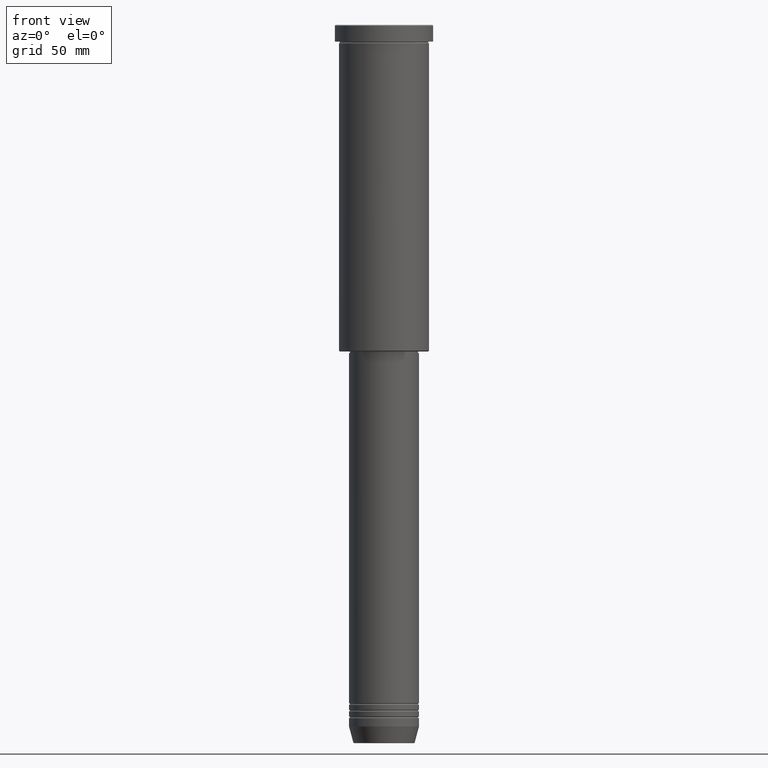
[diagram: clean part render]
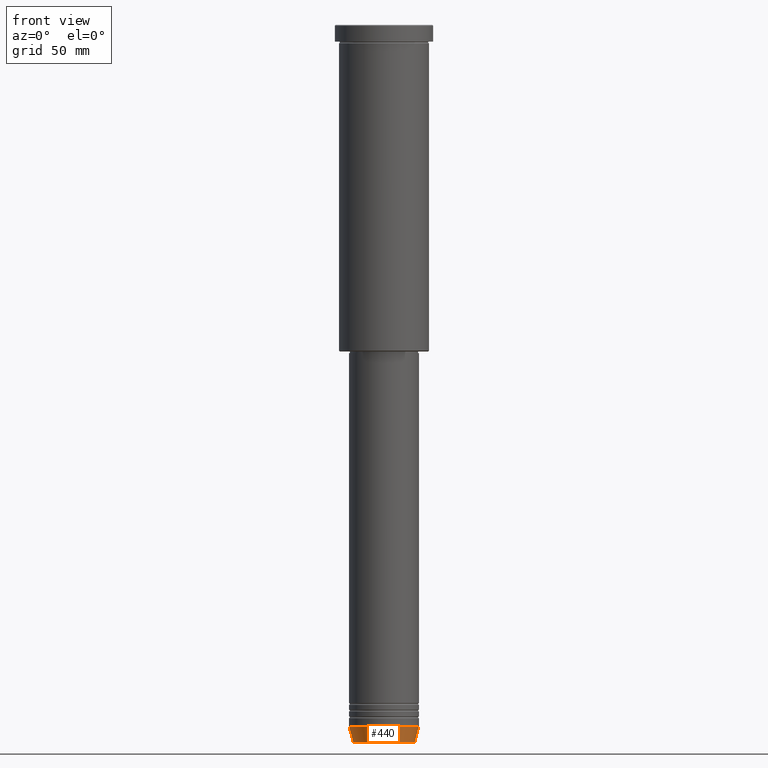
[diagram: same view with one face highlighted and labeled with its STEP entity id]
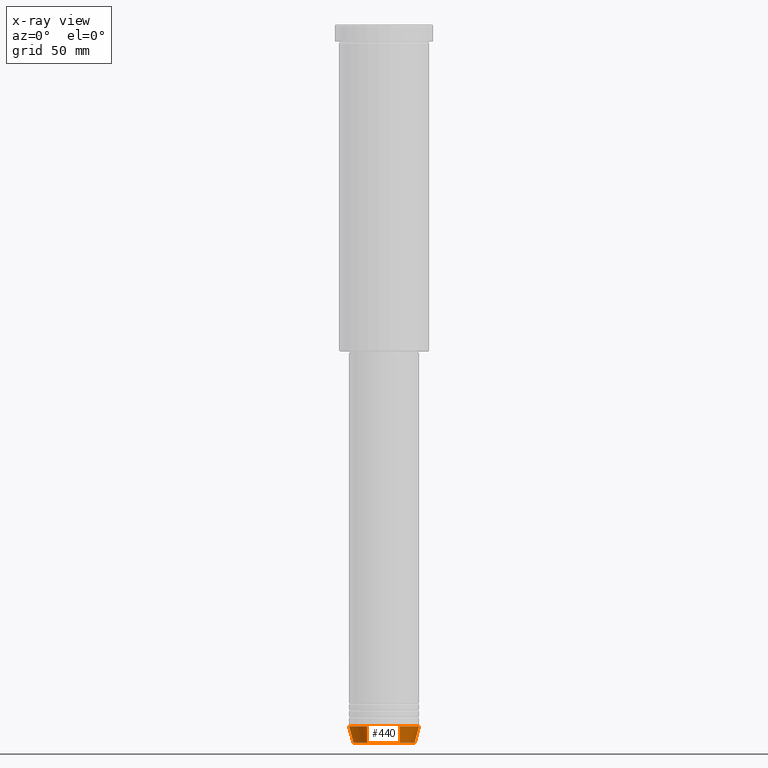
[diagram: x-ray of the same camera — body ghosted, the highlighted face saturated]
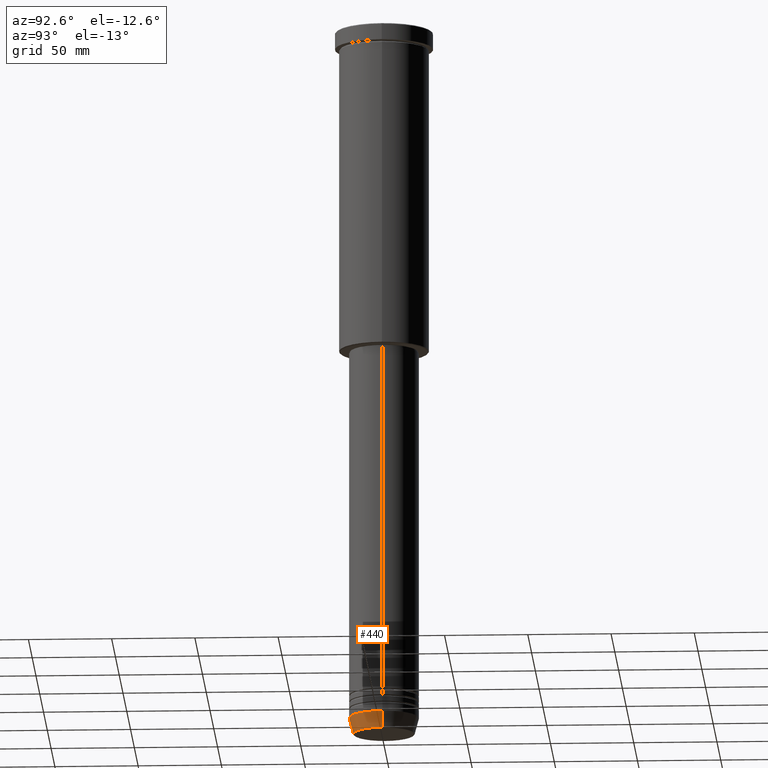
[diagram: same view with one face highlighted and labeled with its STEP entity id]
A machine part, front view. The second image highlights one B-rep face of the part: STEP entity #440.
The next image is the same camera in x-ray: the body ghosted, the highlighted face saturated — about 0% of this face is hidden behind the body in this view.
A second angle (auxiliary view) of the same face is appended — the face is thin or edge-on in the first view.
In plain terms, the highlighted conical surface has half-angle 15 deg.
Its self-contained STEP definition (entity closure, byte-faithful):
#26 = CARTESIAN_POINT ( 'NONE',  ( 0.000000000000000000, 0.000000000000000000, -421.0000000000000000 ) ) ;
#202 = DIRECTION ( 'NONE',  ( 1.000000000000000000, 0.000000000000000000, 0.000000000000000000 ) ) ;
#210 = ORIENTED_EDGE ( 'NONE', *, *, #808, .T. ) ;
#221 = CARTESIAN_POINT ( 'NONE',  ( -21.00000000000000000, 2.571758278209441661E-15, -421.0000000000000000 ) ) ;
#249 = DIRECTION ( 'NONE',  ( 1.000000000000000000, 0.000000000000000000, 0.000000000000000000 ) ) ;
#250 = VECTOR ( 'NONE', #851, 1000.000000000000114 ) ;
#288 = DIRECTION ( 'NONE',  ( -0.2588190451025211836, 3.169619151431770488E-17, 0.9659258262890680902 ) ) ;
#320 = CARTESIAN_POINT ( 'NONE',  ( 21.00000000000000000, 0.000000000000000000, -421.0000000000000000 ) ) ;
#323 = CONICAL_SURFACE ( 'NONE', #382, 21.00000000000000000, 0.2617993877991499074 ) ;
#382 = AXIS2_PLACEMENT_3D ( 'NONE', #1007, #823, #1180 ) ;
#409 = CARTESIAN_POINT ( 'NONE',  ( 18.41980749484383750, 0.000000000000000000, -430.6294095225512706 ) ) ;
#426 = VECTOR ( 'NONE', #288, 1000.000000000000114 ) ;
#440 = ADVANCED_FACE ( 'NONE', ( #1071 ), #323, .T. ) ;
#483 = LINE ( 'NONE', #221, #426 ) ;
#496 = AXIS2_PLACEMENT_3D ( 'NONE', #26, #935, #202 ) ;
#501 = VERTEX_POINT ( 'NONE', #409 ) ;
#526 = EDGE_CURVE ( 'NONE', #1172, #746, #1008, .T. ) ;
#557 = EDGE_CURVE ( 'NONE', #501, #746, #928, .T. ) ;
#579 = CARTESIAN_POINT ( 'NONE',  ( -18.41980749484383750, 2.413767053578267458E-15, -430.6294095225512706 ) ) ;
#700 = CARTESIAN_POINT ( 'NONE',  ( 21.00000000000000000, 0.000000000000000000, -421.0000000000000000 ) ) ;
#746 = VERTEX_POINT ( 'NONE', #700 ) ;
#766 = CARTESIAN_POINT ( 'NONE',  ( 0.000000000000000000, 0.000000000000000000, -430.6294095225512706 ) ) ;
#774 = ORIENTED_EDGE ( 'NONE', *, *, #557, .T. ) ;
#808 = EDGE_CURVE ( 'NONE', #1093, #501, #951, .T. ) ;
#823 = DIRECTION ( 'NONE',  ( -0.000000000000000000, -0.000000000000000000, 1.000000000000000000 ) ) ;
#851 = DIRECTION ( 'NONE',  ( 0.2588190451025211836, 0.000000000000000000, 0.9659258262890680902 ) ) ;
#928 = LINE ( 'NONE', #320, #250 ) ;
#935 = DIRECTION ( 'NONE',  ( -0.000000000000000000, -0.000000000000000000, 1.000000000000000000 ) ) ;
#937 = CARTESIAN_POINT ( 'NONE',  ( -21.00000000000000000, 2.571758278209441661E-15, -421.0000000000000000 ) ) ;
#949 = ORIENTED_EDGE ( 'NONE', *, *, #526, .F. ) ;
#951 = CIRCLE ( 'NONE', #1101, 18.41980749484383750 ) ;
#1007 = CARTESIAN_POINT ( 'NONE',  ( 0.000000000000000000, 0.000000000000000000, -421.0000000000000000 ) ) ;
#1008 = CIRCLE ( 'NONE', #496, 21.00000000000000000 ) ;
#1071 = FACE_OUTER_BOUND ( 'NONE', #1079, .T. ) ;
#1079 = EDGE_LOOP ( 'NONE', ( #1168, #210, #774, #949 ) ) ;
#1093 = VERTEX_POINT ( 'NONE', #579 ) ;
#1101 = AXIS2_PLACEMENT_3D ( 'NONE', #766, #1155, #249 ) ;
#1150 = EDGE_CURVE ( 'NONE', #1093, #1172, #483, .T. ) ;
#1155 = DIRECTION ( 'NONE',  ( -0.000000000000000000, -0.000000000000000000, 1.000000000000000000 ) ) ;
#1168 = ORIENTED_EDGE ( 'NONE', *, *, #1150, .F. ) ;
#1172 = VERTEX_POINT ( 'NONE', #937 ) ;
#1180 = DIRECTION ( 'NONE',  ( 1.000000000000000000, 0.000000000000000000, 0.000000000000000000 ) ) ;